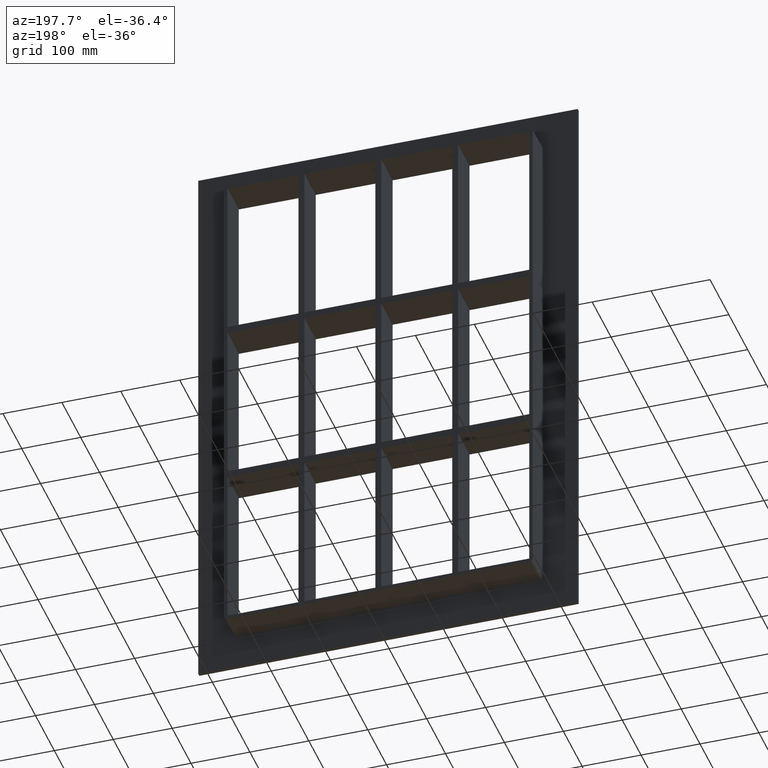
[diagram: clean part render]
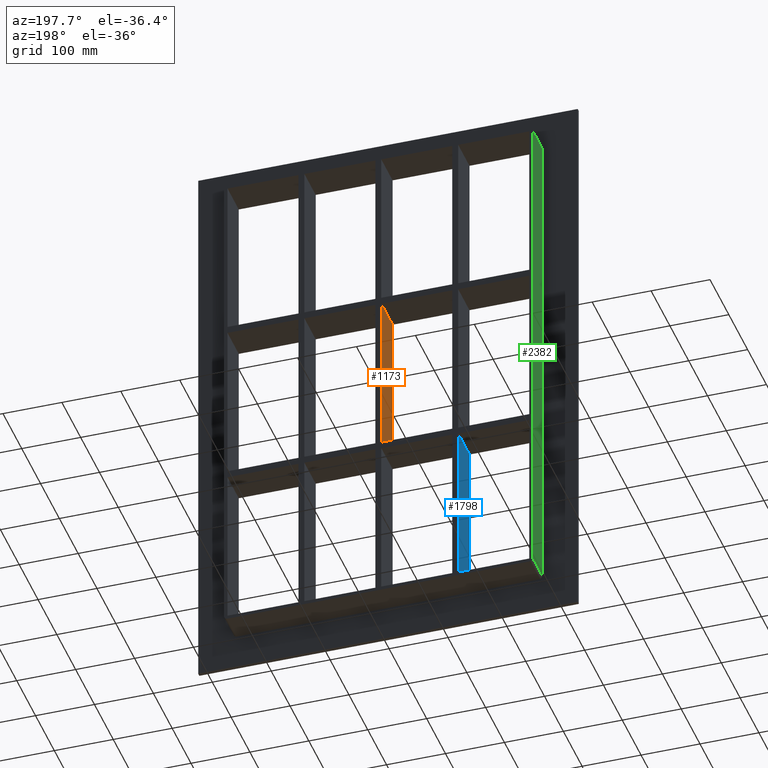
[diagram: same view with three faces highlighted in distinct colors, each labeled with its STEP entity id]
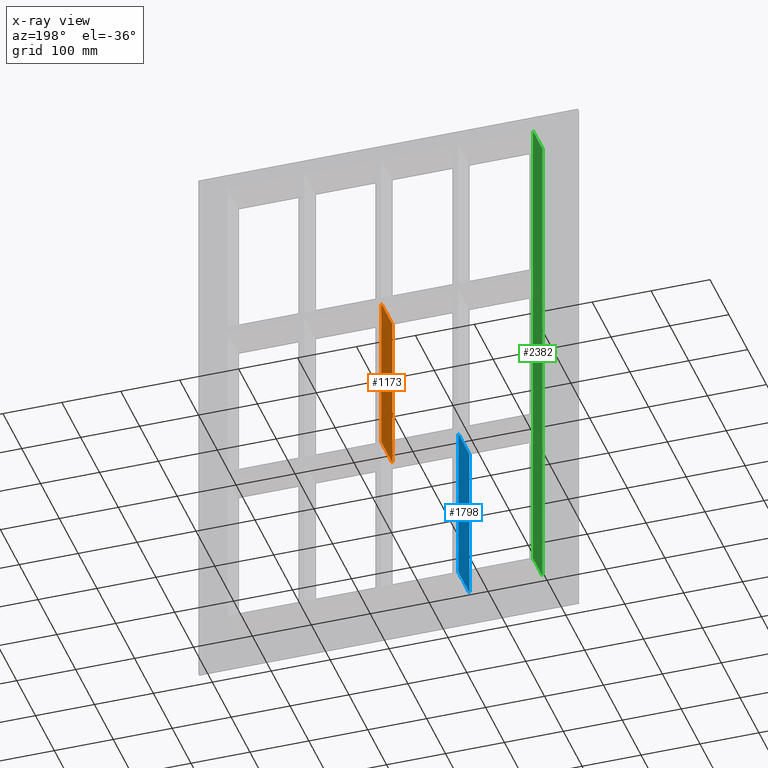
[diagram: x-ray of the same camera — body ghosted, the three highlighted faces saturated]
A machine part, auxiliary view with three faces highlighted in distinct colors.
The next image is the same camera in x-ray (body ghosted, the three faces saturated) — at least one of them is partly hidden behind the body in this view.
Their STEP definitions:

[orange] entity #1173 — the highlighted planar face has unit normal (-1, 0, 0).
#113=CARTESIAN_POINT('',(-5.000000000001386,-3.0,138.99999999999051));
#114=VERTEX_POINT('',#113);
#115=CARTESIAN_POINT('',(-5.000000000001386,57.0,138.99999999999051));
#116=VERTEX_POINT('',#115);
#117=CARTESIAN_POINT('',(-5.000000000001368,-3.0,138.99999999999048));
#118=DIRECTION('',(0.0,1.0,0.0));
#119=VECTOR('',#118,60.0);
#120=LINE('',#117,#119);
#121=EDGE_CURVE('',#114,#116,#120,.T.);
#876=CARTESIAN_POINT('',(-5.000000000001345,57.0,-139.00000000000006));
#877=VERTEX_POINT('',#876);
#884=CARTESIAN_POINT('',(-5.000000000001345,57.0,-139.00000000000006));
#885=DIRECTION('',(0.0,0.0,1.0));
#886=VECTOR('',#885,277.99999999999062);
#887=LINE('',#884,#886);
#888=EDGE_CURVE('',#877,#116,#887,.T.);
#1150=CARTESIAN_POINT('',(-5.000000000001315,-3.0,-429.00000000000011));
#1151=DIRECTION('',(-1.0,0.0,0.0));
#1152=DIRECTION('',(0.0,0.0,1.0));
#1153=AXIS2_PLACEMENT_3D('',#1150,#1151,#1152);
#1154=PLANE('',#1153);
#1155=ORIENTED_EDGE('',*,*,#121,.T.);
#1156=ORIENTED_EDGE('',*,*,#888,.F.);
#1157=CARTESIAN_POINT('',(-5.000000000001345,-3.0,-139.00000000000006));
#1158=VERTEX_POINT('',#1157);
#1159=CARTESIAN_POINT('',(-5.000000000001348,-3.0,-139.00000000000006));
#1160=DIRECTION('',(0.0,1.0,0.0));
#1161=VECTOR('',#1160,60.0);
#1162=LINE('',#1159,#1161);
#1163=EDGE_CURVE('',#1158,#877,#1162,.T.);
#1164=ORIENTED_EDGE('',*,*,#1163,.F.);
#1165=CARTESIAN_POINT('',(-5.000000000001345,-3.0,-139.00000000000006));
#1166=DIRECTION('',(0.0,0.0,1.0));
#1167=VECTOR('',#1166,277.99999999999062);
#1168=LINE('',#1165,#1167);
#1169=EDGE_CURVE('',#1158,#114,#1168,.T.);
#1170=ORIENTED_EDGE('',*,*,#1169,.T.);
#1171=EDGE_LOOP('',(#1155,#1156,#1164,#1170));
#1172=FACE_OUTER_BOUND('',#1171,.T.);
#1173=ADVANCED_FACE('',(#1172),#1154,.T.);

[blue] entity #1798 — the highlighted planar face has unit normal (-1, 0, 0).
#902=CARTESIAN_POINT('',(-135.50000000000131,57.0,-429.00000000000011));
#903=VERTEX_POINT('',#902);
#910=CARTESIAN_POINT('',(-135.50000000000131,57.0,-151.00000000000955));
#911=VERTEX_POINT('',#910);
#912=CARTESIAN_POINT('',(-135.50000000000131,57.0,-429.00000000000011));
#913=DIRECTION('',(0.0,0.0,1.0));
#914=VECTOR('',#913,277.99999999999056);
#915=LINE('',#912,#914);
#916=EDGE_CURVE('',#903,#911,#915,.T.);
#1549=CARTESIAN_POINT('',(-135.50000000000131,-3.0,-151.00000000000955));
#1550=VERTEX_POINT('',#1549);
#1559=CARTESIAN_POINT('',(-135.50000000000131,-3.0,-429.00000000000011));
#1560=VERTEX_POINT('',#1559);
#1561=CARTESIAN_POINT('',(-135.50000000000131,-3.0,-429.00000000000011));
#1562=DIRECTION('',(0.0,0.0,1.0));
#1563=VECTOR('',#1562,277.99999999999056);
#1564=LINE('',#1561,#1563);
#1565=EDGE_CURVE('',#1560,#1550,#1564,.T.);
#1700=CARTESIAN_POINT('',(-135.50000000000136,-3.0,-151.00000000000955));
#1701=DIRECTION('',(0.0,1.0,0.0));
#1702=VECTOR('',#1701,60.0);
#1703=LINE('',#1700,#1702);
#1704=EDGE_CURVE('',#1550,#911,#1703,.T.);
#1782=CARTESIAN_POINT('',(-135.50000000000131,-3.0,-429.00000000000011));
#1783=DIRECTION('',(-1.0,0.0,0.0));
#1784=DIRECTION('',(0.0,0.0,1.0));
#1785=AXIS2_PLACEMENT_3D('',#1782,#1783,#1784);
#1786=PLANE('',#1785);
#1787=ORIENTED_EDGE('',*,*,#1704,.T.);
#1788=ORIENTED_EDGE('',*,*,#916,.F.);
#1789=CARTESIAN_POINT('',(-135.50000000000131,-3.0,-429.00000000000011));
#1790=DIRECTION('',(0.0,1.0,0.0));
#1791=VECTOR('',#1790,60.000000000000007);
#1792=LINE('',#1789,#1791);
#1793=EDGE_CURVE('',#1560,#903,#1792,.T.);
#1794=ORIENTED_EDGE('',*,*,#1793,.F.);
#1795=ORIENTED_EDGE('',*,*,#1565,.T.);
#1796=EDGE_LOOP('',(#1787,#1788,#1794,#1795));
#1797=FACE_OUTER_BOUND('',#1796,.T.);
#1798=ADVANCED_FACE('',(#1797),#1786,.T.);

[green] entity #2382 — the highlighted planar face has unit normal (-1, 0, 0).
#722=CARTESIAN_POINT('',(-262.0,57.0,-429.00000000000006));
#723=VERTEX_POINT('',#722);
#731=CARTESIAN_POINT('',(-262.0,57.0,429.00000000000006));
#732=VERTEX_POINT('',#731);
#733=CARTESIAN_POINT('',(-262.0,57.0,-429.00000000000006));
#734=DIRECTION('',(0.0,0.0,1.0));
#735=VECTOR('',#734,858.0);
#736=LINE('',#733,#735);
#737=EDGE_CURVE('',#723,#732,#736,.T.);
#1881=CARTESIAN_POINT('',(-262.0,6.000000000000001,-429.00000000000006));
#1882=VERTEX_POINT('',#1881);
#1932=CARTESIAN_POINT('',(-262.0,6.000000000000001,429.00000000000006));
#1933=VERTEX_POINT('',#1932);
#1941=CARTESIAN_POINT('',(-262.0,6.000000000000001,-429.00000000000006));
#1942=DIRECTION('',(0.0,0.0,1.0));
#1943=VECTOR('',#1942,858.0);
#1944=LINE('',#1941,#1943);
#1945=EDGE_CURVE('',#1882,#1933,#1944,.T.);
#2355=CARTESIAN_POINT('',(-262.0,6.000000000000001,-429.00000000000006));
#2356=DIRECTION('',(0.0,1.0,0.0));
#2357=VECTOR('',#2356,51.0);
#2358=LINE('',#2355,#2357);
#2359=EDGE_CURVE('',#1882,#723,#2358,.T.);
#2366=CARTESIAN_POINT('',(-262.0,0.0,-435.0));
#2367=DIRECTION('',(-1.0,0.0,0.0));
#2368=DIRECTION('',(0.0,0.0,1.0));
#2369=AXIS2_PLACEMENT_3D('',#2366,#2367,#2368);
#2370=PLANE('',#2369);
#2371=ORIENTED_EDGE('',*,*,#1945,.T.);
#2372=CARTESIAN_POINT('',(-262.0,57.0,429.00000000000006));
#2373=DIRECTION('',(0.0,-1.0,0.0));
#2374=VECTOR('',#2373,51.0);
#2375=LINE('',#2372,#2374);
#2376=EDGE_CURVE('',#732,#1933,#2375,.T.);
#2377=ORIENTED_EDGE('',*,*,#2376,.F.);
#2378=ORIENTED_EDGE('',*,*,#737,.F.);
#2379=ORIENTED_EDGE('',*,*,#2359,.F.);
#2380=EDGE_LOOP('',(#2371,#2377,#2378,#2379));
#2381=FACE_OUTER_BOUND('',#2380,.T.);
#2382=ADVANCED_FACE('',(#2381),#2370,.T.);